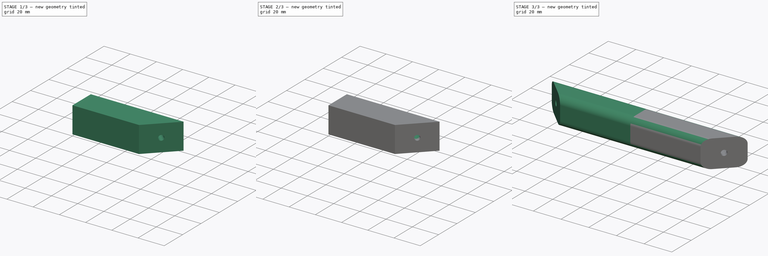
[diagram: build sequence overview — one tinted view per stage of 3, left to right]
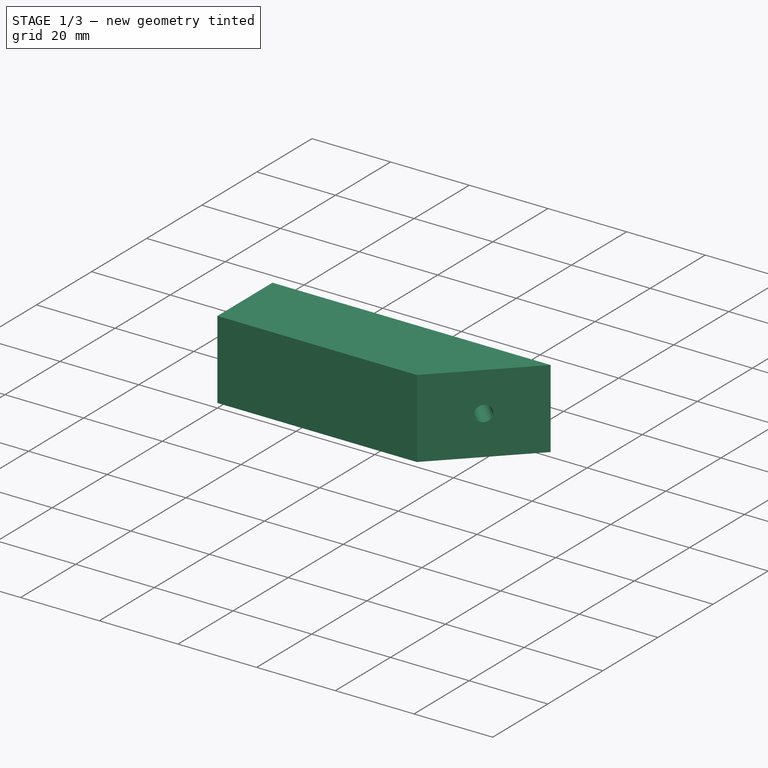
[diagram: stage 1 of 3 — iso view after this stage's code; geometry added in this stage tinted green]
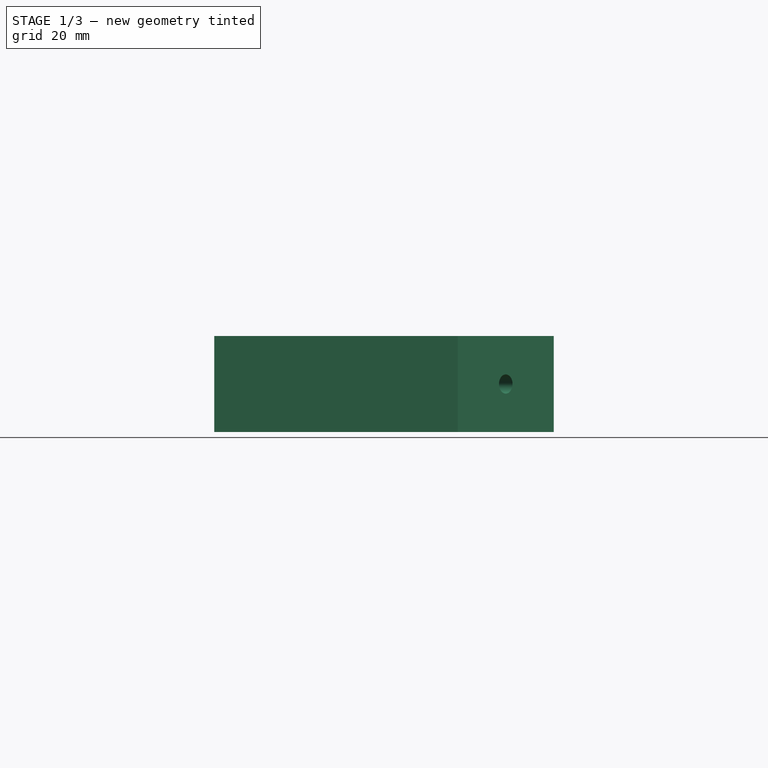
[diagram: stage 1 of 3 — front view after this stage's code; geometry added in this stage tinted green]
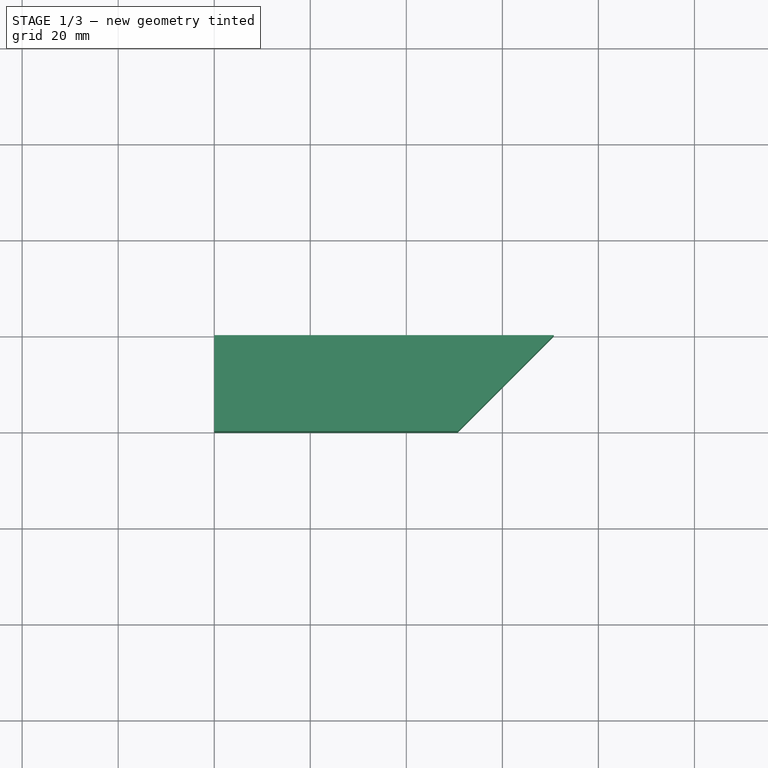
[diagram: stage 1 of 3 — top view after this stage's code; geometry added in this stage tinted green]
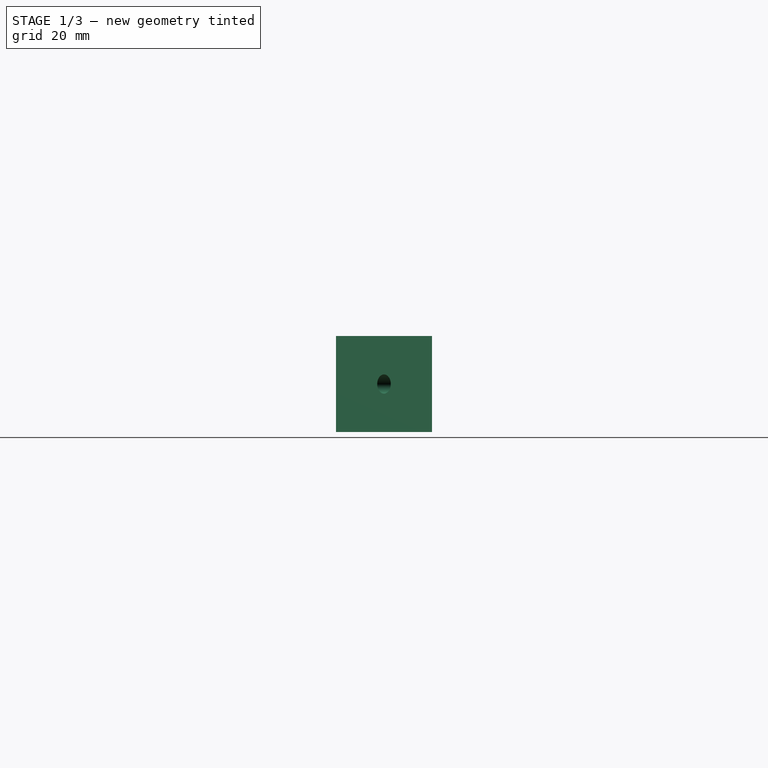
[diagram: stage 1 of 3 — right view after this stage's code; geometry added in this stage tinted green]
FCSTD DOCUMENT  (FreeCAD 1.0R39109 (Git))
Label: Strut
License: All rights reserved
LicenseURL: http://en.wikipedia.org/wiki/All_rights_reserved
objects: Sketcher::SketchObject×4, PartDesign::Pocket×2, Spreadsheet::Sheet×1, PartDesign::Pad×1, PartDesign::Plane×1, PartDesign::Chamfer×1, PartDesign::Fillet×1, PartDesign::Mirrored×1, PartDesign::Body×1
note: 27 computed .brp shape members not serialized (recipe doc carries the construction recipe); baked Part::Feature solids carry a one-line shape summary decoded from their .brp

FEATURE [Spreadsheet::Sheet] Spreadsheet
  cells = A1='hole_object_distance; B1(hole_object_distance)=50; A2='screw_hole_diameter; B2(screw_hole_diameter)=4; A3='thickness; B3(thickness)=20; A4='screw_head_indentation_depth; B4(screw_head_indentation_depth)=3; A5='screw_head_hole_diameter; B5(screw_head_hole_diameter)=8; A6='screw_support_thickness; B6(screw_support_thickness)=3; A7='edge_radius; B7(edge_radius)=5
FEATURE [Sketcher::SketchObject] Sketch
  ArcFitTolerance = 1e-06
  AttachmentSupport = -> [XY_Plane]
  FullyConstrained = true
  MakeInternals = false
  MapMode = 5
  expr: Constraints[10] = 45
  expr: Constraints[12] = 100
  expr: Constraints[22] = Spreadsheet.hole_object_distance
  expr: Constraints[8] = Spreadsheet.thickness
  sketch-geometry (8):
    g0: LineSegment StartX=0 StartY=0 StartZ=0 EndX=50.7107 EndY=0 EndZ=0
    g1: LineSegment StartX=50.7107 StartY=0 StartZ=0 EndX=70.7107 EndY=20 EndZ=0
    g2: LineSegment StartX=70.7107 StartY=20 StartZ=0 EndX=0 EndY=20 EndZ=0
    g3: LineSegment StartX=0 StartY=20 StartZ=0 EndX=0 EndY=0 EndZ=0
    g4: LineSegment [constr] StartX=0 StartY=0 StartZ=0 EndX=70.7107 EndY=-70.7107 EndZ=0
    g5: LineSegment [constr] StartX=50.7107 StartY=0 StartZ=0 EndX=50.7107 EndY=20 EndZ=0
    g6: LineSegment [constr] StartX=50.7107 StartY=20 StartZ=0 EndX=60.7107 EndY=10 EndZ=0
    g7: LineSegment [constr] StartX=60.7107 StartY=10 StartZ=0 EndX=25.3553 EndY=-25.3553 EndZ=0
  constraints (23):
    c: Coincident(g0,g-1)
    c: PointOnObject(g0,g-1)
    c: Coincident(g1,g0)
    c: Coincident(g2,g1)
    c: PointOnObject(g2,g-2)
    c: Horizontal(g2)
    c: Coincident(g3,g2)
    c: Coincident(g3,g0)
    c: DistanceY(g0,g2) = 20
    c: Coincident(g4,g0)
    c: Angle(g4,g-1) = 0.785398
    c: Perpendicular(g4,g1)
    c: Distance(g4) = 100
    c: Coincident(g5,g0)
    c: PointOnObject(g5,g2)
    c: Vertical(g5)
    c: Coincident(g6,g5)
    c: PointOnObject(g6,g1)
    c: Perpendicular(g6,g1)
    c: Coincident(g7,g6)
    c: PointOnObject(g7,g4)
    c: Perpendicular(g7,g4)
    c: Distance(g7) = 50
FEATURE [PartDesign::Pad] Pad
  Direction = (0,0,1)
  Length = 20
  Length2 = 10
  Profile = -> Sketch
  ReferenceAxis = -> Sketch [N_Axis]
  Suppressed = false
  Type = 0
  expr: Length = Spreadsheet.thickness
FEATURE [PartDesign::Plane] DatumPlane
  AttachmentOffset = pos=(0,0,6) rot=(0,0,1;0rad)
  AttachmentSupport = -> [Pad]
  Length = 151.809
  MapMode = 5
  Placement = pos=(21.1127,-21.1127,0) rot=(-0.281085,0.678598,0.678598;3.68962rad)
  ResizeMode = 0
  Width = 66.4533
  expr: .AttachmentOffset.Base.z = Spreadsheet.screw_support_thickness + Spreadsheet.screw_head_indentation_depth
FEATURE [Sketcher::SketchObject] Sketch001
  ArcFitTolerance = 1e-06
  AttachmentSupport = -> [DatumPlane]
  FullyConstrained = true
  MakeInternals = false
  MapMode = 5
  Placement = pos=(21.1127,-21.1127,0) rot=(-0.281085,0.678598,0.678598;3.68962rad)
FEATURE [Sketcher::SketchObject] Sketch002
  ArcFitTolerance = 1e-06
  AttachmentSupport = -> [DatumPlane]
  FullyConstrained = true
  MakeInternals = false
  MapMode = 5
  Placement = pos=(21.1127,-21.1127,0) rot=(-0.281085,0.678598,0.678598;3.68962rad)
  expr: Constraints[0] = Spreadsheet.screw_hole_diameter
  expr: Constraints[1] = Spreadsheet.thickness / 2
  expr: Constraints[2] = Spreadsheet.hole_object_distance
  sketch-geometry (1):
    g0: Circle CenterX=-50 CenterY=10 CenterZ=0 NormalX=0 NormalY=0 NormalZ=1 AngleXU=0 Radius=2
  constraints (3):
    c: Diameter(g0) = 4
    c: DistanceY(g-1,g0) = 10
    c: DistanceX(g0,g-1) = 50
FEATURE [PartDesign::Pocket] Pocket
  BaseFeature = -> Pad
  Direction = (0.707107,-0.707107,-1e-16)
  Length = 5
  Length2 = 5
  Midplane = true
  Profile = -> Sketch002
  ReferenceAxis = -> Sketch002 [N_Axis]
  Suppressed = false
  Type = 1
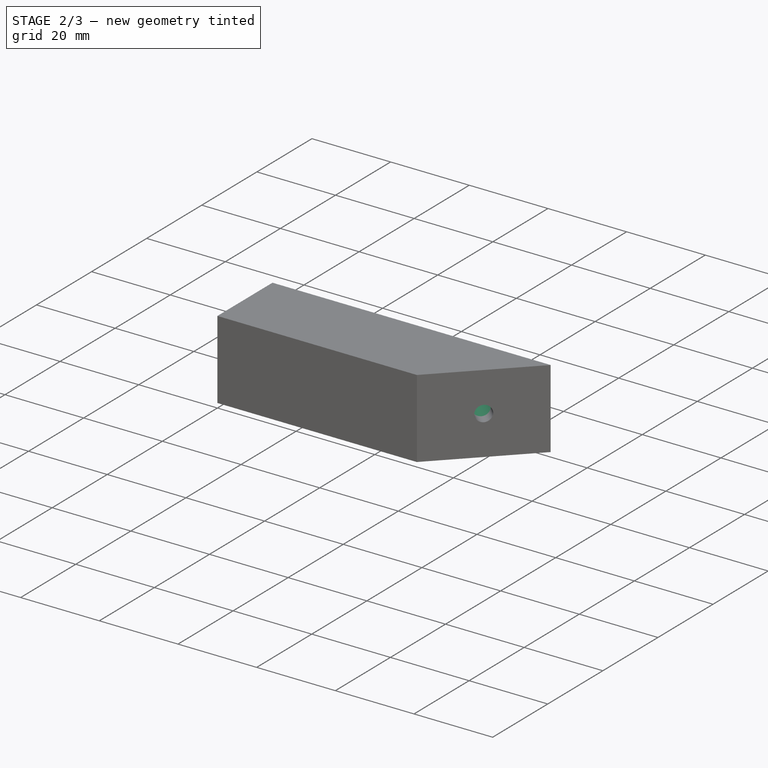
[diagram: stage 2 of 3 — iso view after this stage's code; geometry added in this stage tinted green]
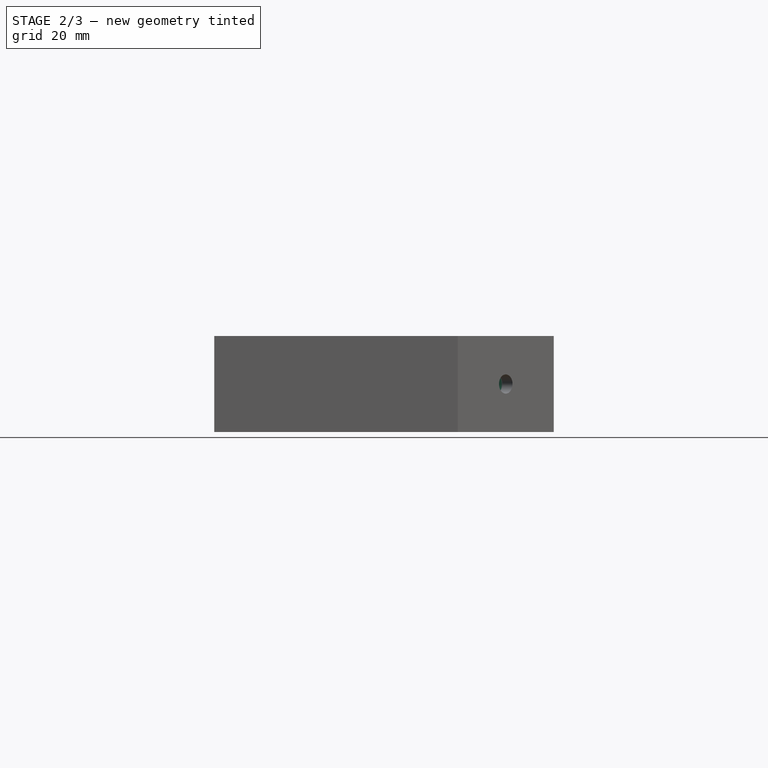
[diagram: stage 2 of 3 — front view after this stage's code; geometry added in this stage tinted green]
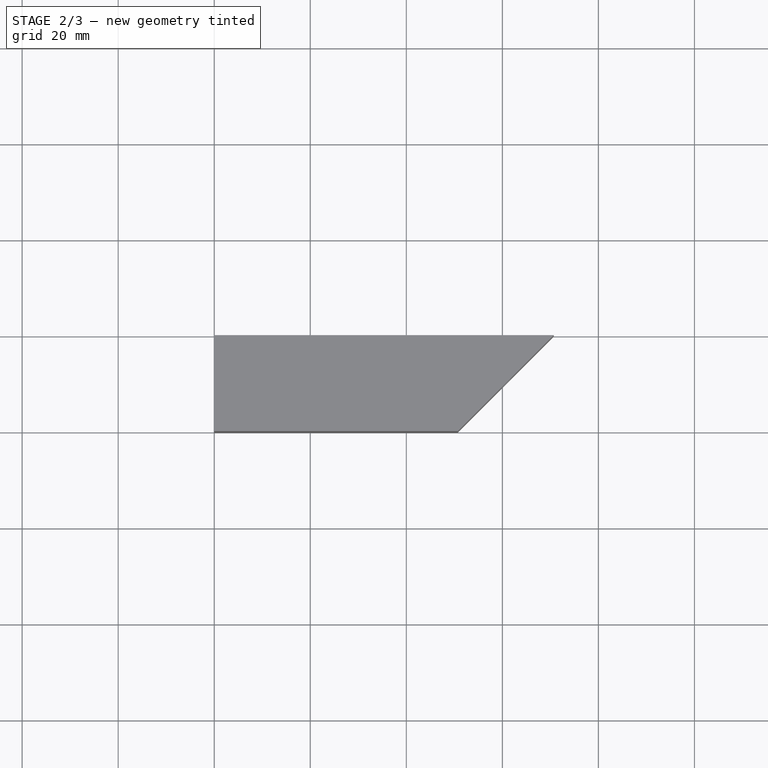
[diagram: stage 2 of 3 — top view after this stage's code; geometry added in this stage tinted green]
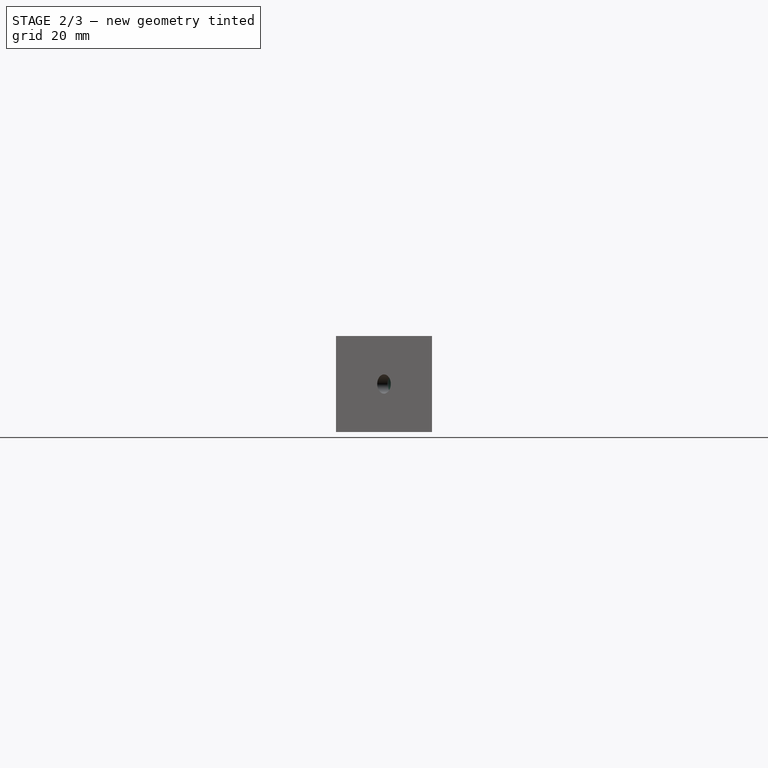
[diagram: stage 2 of 3 — right view after this stage's code; geometry added in this stage tinted green]
FEATURE [Sketcher::SketchObject] Sketch003
  ArcFitTolerance = 1e-06
  AttachmentSupport = -> [DatumPlane]
  FullyConstrained = true
  MakeInternals = false
  MapMode = 5
  Placement = pos=(21.1127,-21.1127,0) rot=(-0.281085,0.678598,0.678598;3.68962rad)
  expr: Constraints[0] = Spreadsheet.screw_head_hole_diameter
  expr: Constraints[1] = Spreadsheet.hole_object_distance
  expr: Constraints[2] = Spreadsheet.thickness / 2
  sketch-geometry (1):
    g0: Circle CenterX=-50 CenterY=10 CenterZ=0 NormalX=0 NormalY=0 NormalZ=1 AngleXU=0 Radius=4
  constraints (3):
    c: Diameter(g0) = 8
    c: DistanceX(g0,g-1) = 50
    c: DistanceY(g-1,g0) = 10
FEATURE [PartDesign::Pocket] Pocket001
  BaseFeature = -> Pocket
  Direction = (0.707107,-0.707107,-1e-16)
  Length = 5
  Length2 = 5
  Profile = -> Sketch003
  ReferenceAxis = -> Sketch003 [N_Axis]
  Reversed = true
  Suppressed = false
  Type = 1
FEATURE [PartDesign::Chamfer] Chamfer
  Angle = 45
  Base = -> Pocket001 [Edge15]
  BaseFeature = -> Pocket001
  ChamferType = 1
  FlipDirection = false
  Size = 3
  Size2 = 1.9999
  SupportTransform = false
  Suppressed = false
  UseAllEdges = false
  expr: Size = Spreadsheet.screw_head_indentation_depth
  expr: Size2 = Spreadsheet.screw_head_hole_diameter / 2 - Spreadsheet.screw_hole_diameter / 2 - 0.0001
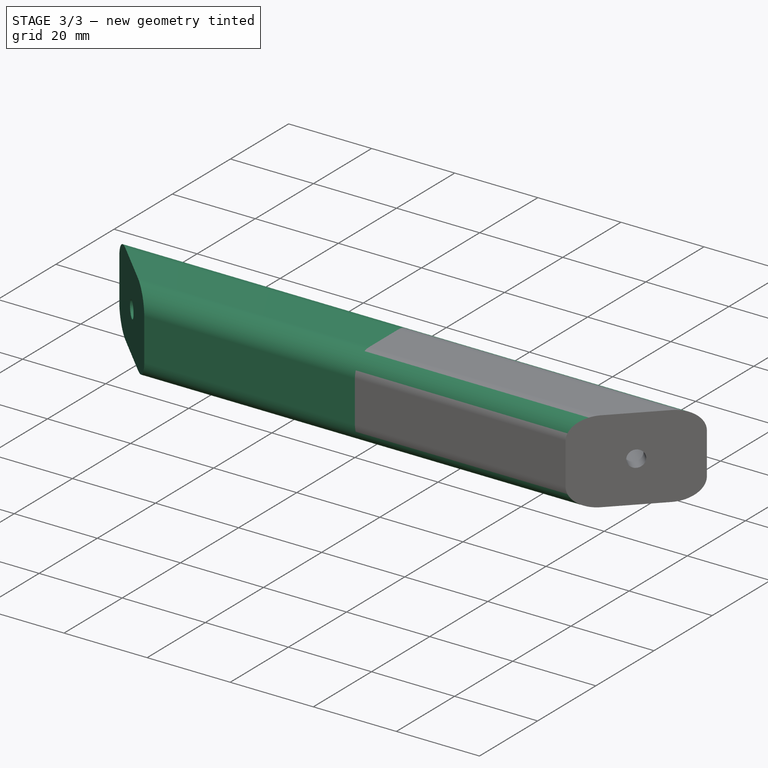
[diagram: stage 3 of 3 — iso view after this stage's code; geometry added in this stage tinted green]
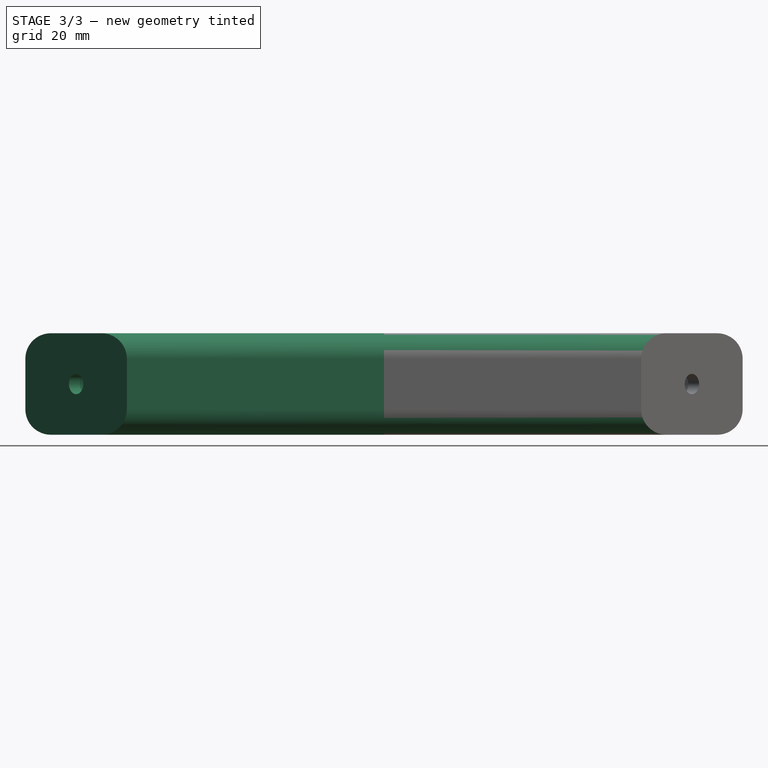
[diagram: stage 3 of 3 — front view after this stage's code; geometry added in this stage tinted green]
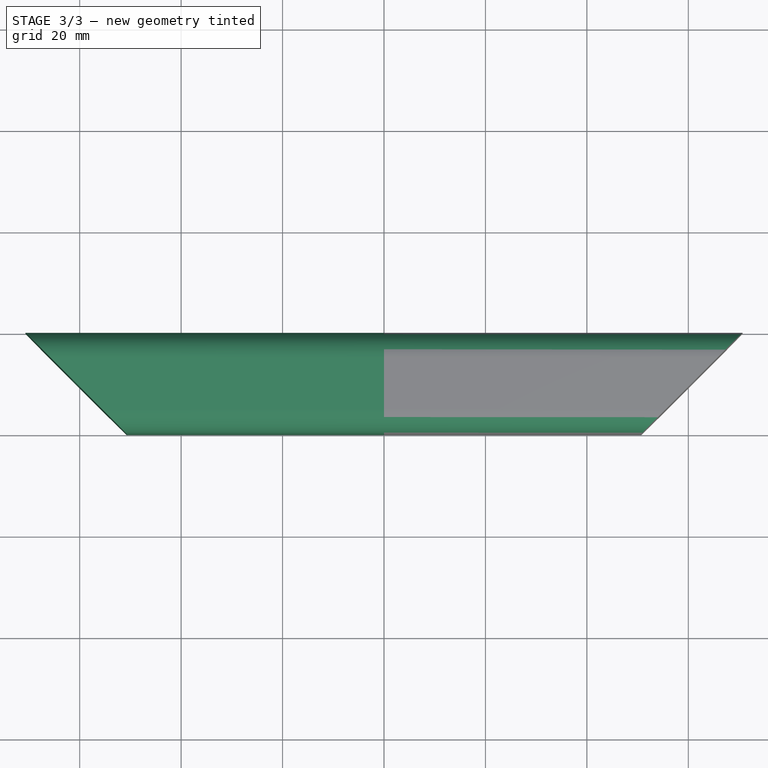
[diagram: stage 3 of 3 — top view after this stage's code; geometry added in this stage tinted green]
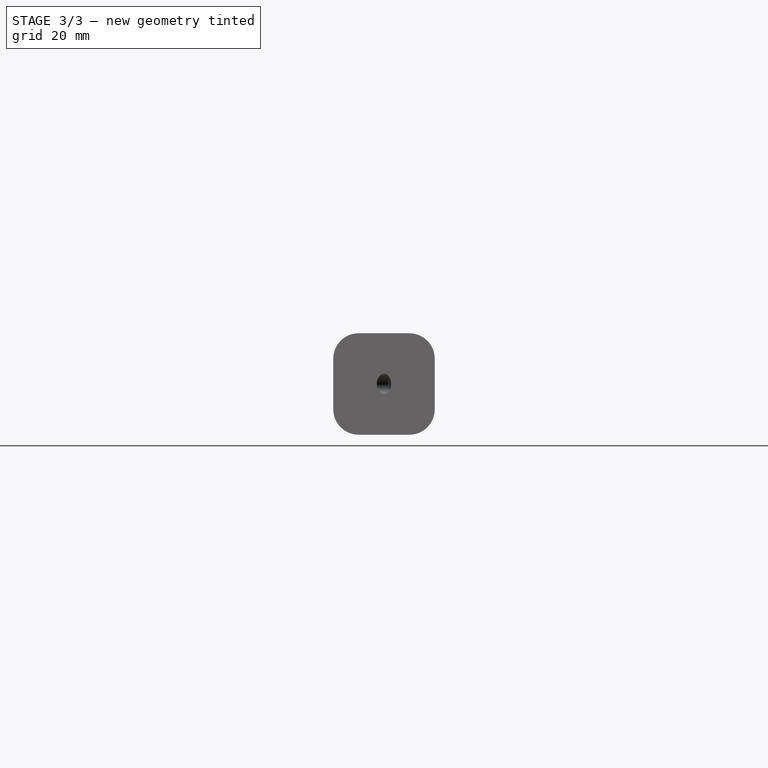
[diagram: stage 3 of 3 — right view after this stage's code; geometry added in this stage tinted green]
FEATURE [PartDesign::Fillet] Fillet
  Base = -> Chamfer [Edge16,Edge13,Edge14,Edge12]
  BaseFeature = -> Chamfer
  Radius = 5
  SupportTransform = false
  Suppressed = false
  UseAllEdges = false
  expr: Radius = Spreadsheet.edge_radius
FEATURE [PartDesign::Mirrored] Mirrored
  BaseFeature = -> Fillet
  MirrorPlane = -> YZ_Plane
  Suppressed = false
  TransformMode = 1
FEATURE [PartDesign::Body] Body
  AllowCompound = false
  Group = -> [Sketch,Pad,DatumPlane,Sketch001,Sketch002,Pocket,Sketch003,Pocket001,Chamfer,Fillet,Mirrored]
  Origin = -> Origin
  Tip = -> Mirrored
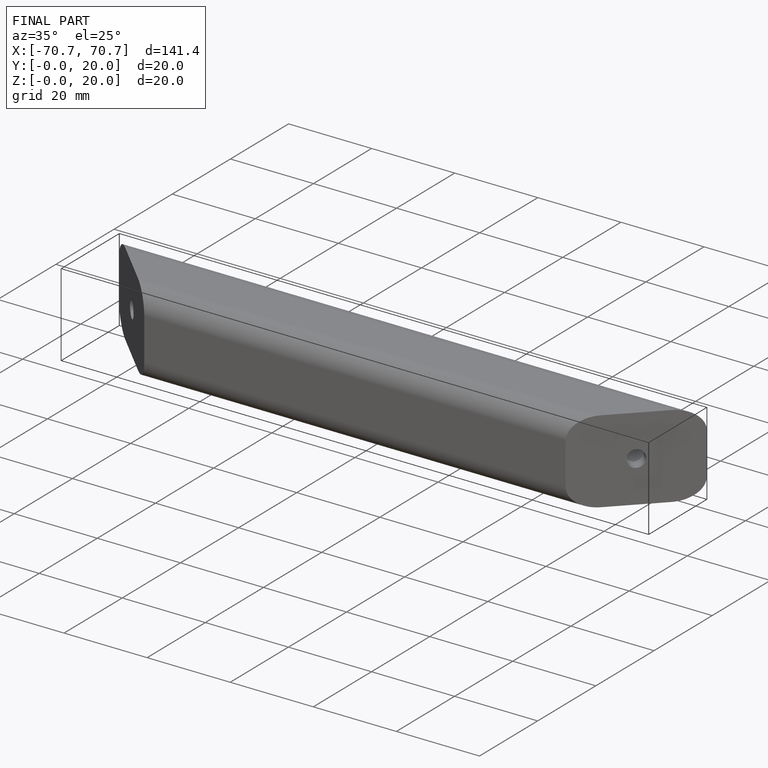
[diagram: finished part — iso view with bounding-box wireframe]
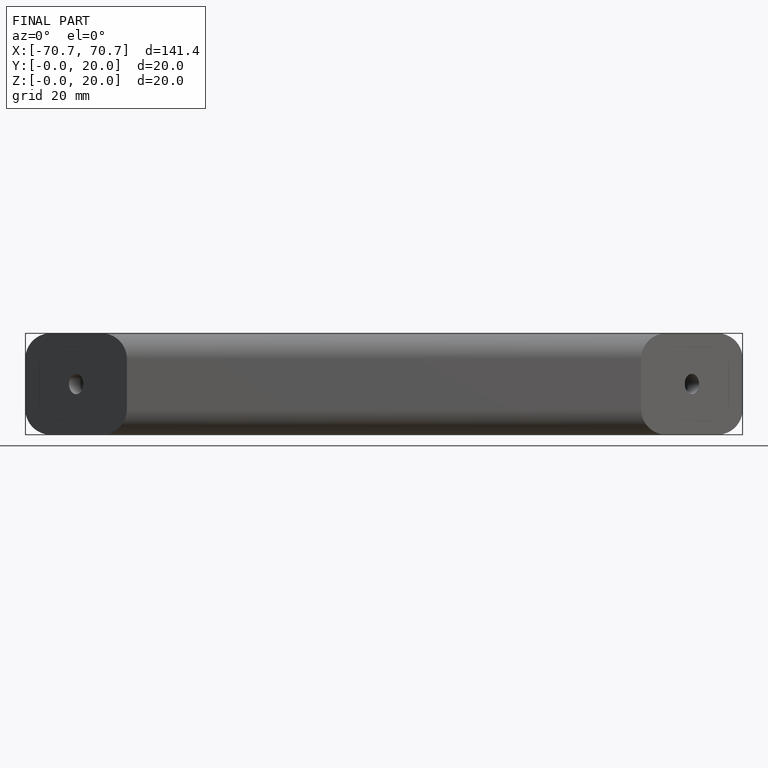
[diagram: finished part — front view with bounding-box wireframe]
